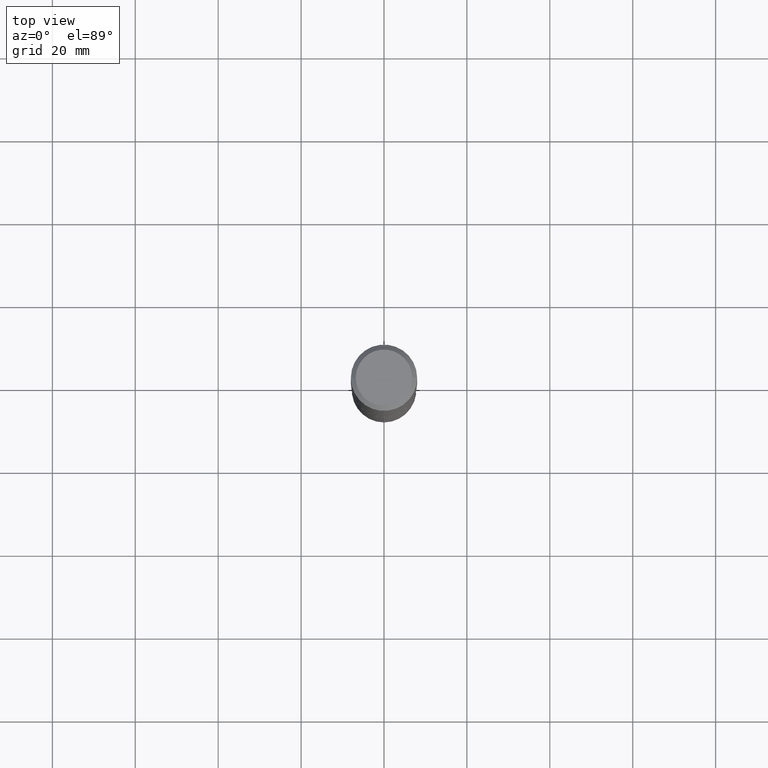
[diagram: clean part render]
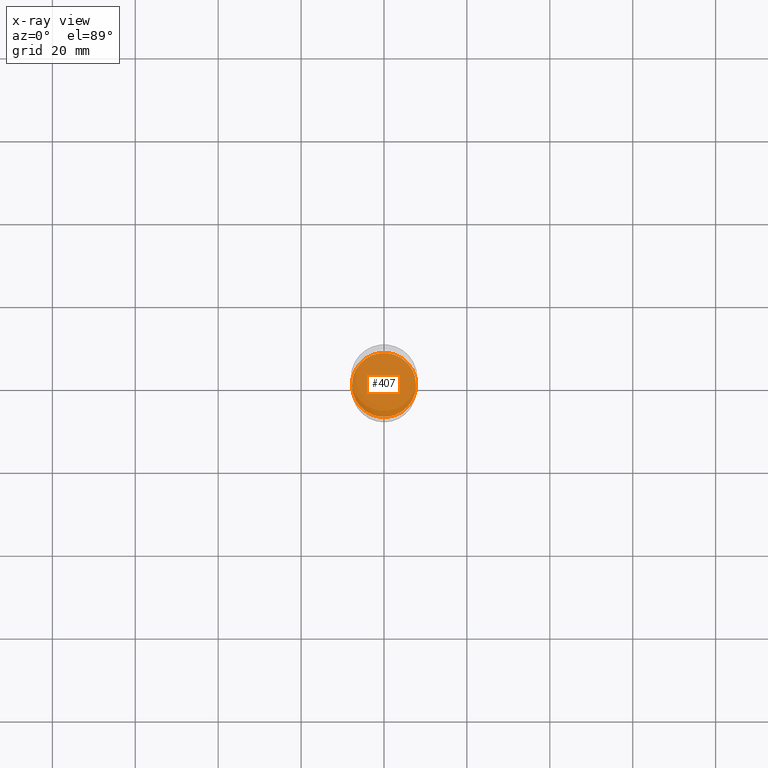
[diagram: x-ray — body ghosted, one internal face saturated and labeled with its STEP entity id]
A machine part, top view, then the same camera in x-ray: the body is ghosted and one INTERNAL B-rep face — a face not visible from any outside direction — is saturated and labeled: STEP entity #407.
In plain terms, the highlighted planar face has unit normal (-0, 0, 1).
Its self-contained STEP definition (entity closure, byte-faithful):
#11 = CARTESIAN_POINT ( 'NONE',  ( 0.3045999999999999819, -1.622491378160409315E-14, -4.037800000000000722 ) ) ;
#12 = CIRCLE ( 'NONE', #57, 0.3045999999999999819 ) ;
#19 = CIRCLE ( 'NONE', #193, 0.3045999999999999819 ) ;
#21 = EDGE_CURVE ( 'NONE', #97, #350, #12, .T. ) ;
#44 = EDGE_LOOP ( 'NONE', ( #324, #149 ) ) ;
#57 = AXIS2_PLACEMENT_3D ( 'NONE', #355, #179, #95 ) ;
#95 = DIRECTION ( 'NONE',  ( 1.000000000000000000, -6.982962677686269866E-15, 0.000000000000000000 ) ) ;
#97 = VERTEX_POINT ( 'NONE', #11 ) ;
#114 = DIRECTION ( 'NONE',  ( -2.445468806185136597E-29, 3.491481338843145583E-15, 1.000000000000000000 ) ) ;
#149 = ORIENTED_EDGE ( 'NONE', *, *, #226, .F. ) ;
#179 = DIRECTION ( 'NONE',  ( -2.445468806185136597E-29, 3.491481338843145583E-15, 1.000000000000000000 ) ) ;
#193 = AXIS2_PLACEMENT_3D ( 'NONE', #451, #114, #418 ) ;
#218 = FACE_OUTER_BOUND ( 'NONE', #44, .T. ) ;
#226 = EDGE_CURVE ( 'NONE', #350, #97, #19, .T. ) ;
#242 = CARTESIAN_POINT ( 'NONE',  ( 9.874313945614344915E-29, -1.409790334998085431E-14, -4.037800000000000722 ) ) ;
#324 = ORIENTED_EDGE ( 'NONE', *, *, #21, .F. ) ;
#350 = VERTEX_POINT ( 'NONE', #462 ) ;
#355 = CARTESIAN_POINT ( 'NONE',  ( 9.874313945614344915E-29, -1.409790334998085431E-14, -4.037800000000000722 ) ) ;
#356 = PLANE ( 'NONE',  #380 ) ;
#380 = AXIS2_PLACEMENT_3D ( 'NONE', #242, #398, #394 ) ;
#394 = DIRECTION ( 'NONE',  ( 1.000000000000000000, -6.982962677686265922E-15, 4.876176775795935793E-29 ) ) ;
#398 = DIRECTION ( 'NONE',  ( -2.438088387897960049E-29, 3.491481338843145188E-15, 1.000000000000000000 ) ) ;
#407 = ADVANCED_FACE ( 'NONE', ( #218 ), #356, .F. ) ;
#418 = DIRECTION ( 'NONE',  ( 1.000000000000000000, -6.982962677686269866E-15, 0.000000000000000000 ) ) ;
#451 = CARTESIAN_POINT ( 'NONE',  ( 9.874313945614344915E-29, -1.409790334998085431E-14, -4.037800000000000722 ) ) ;
#462 = CARTESIAN_POINT ( 'NONE',  ( -0.3045999999999999819, -1.193094094968147571E-14, -4.037800000000000722 ) ) ;